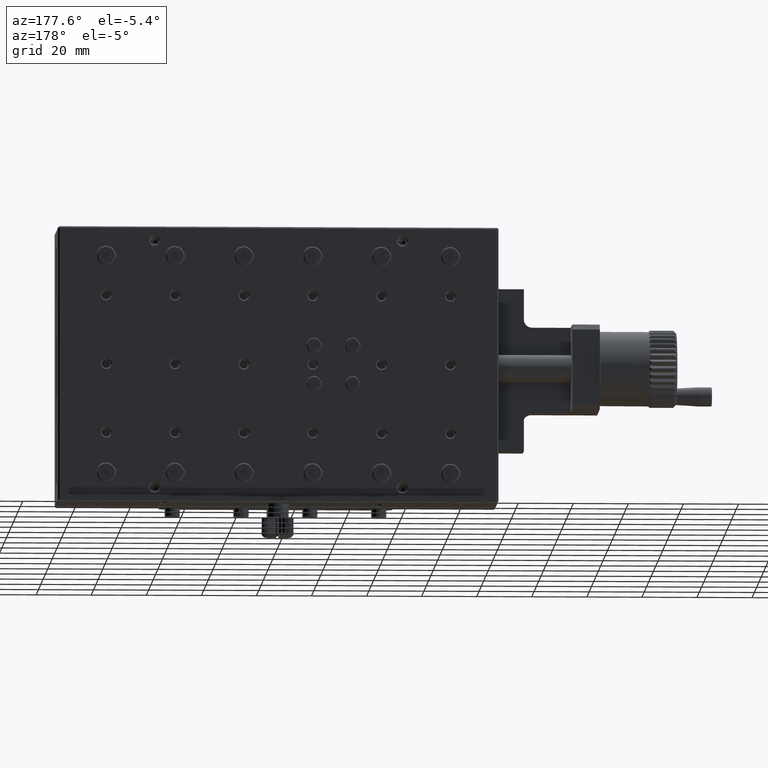
[diagram: clean part render]
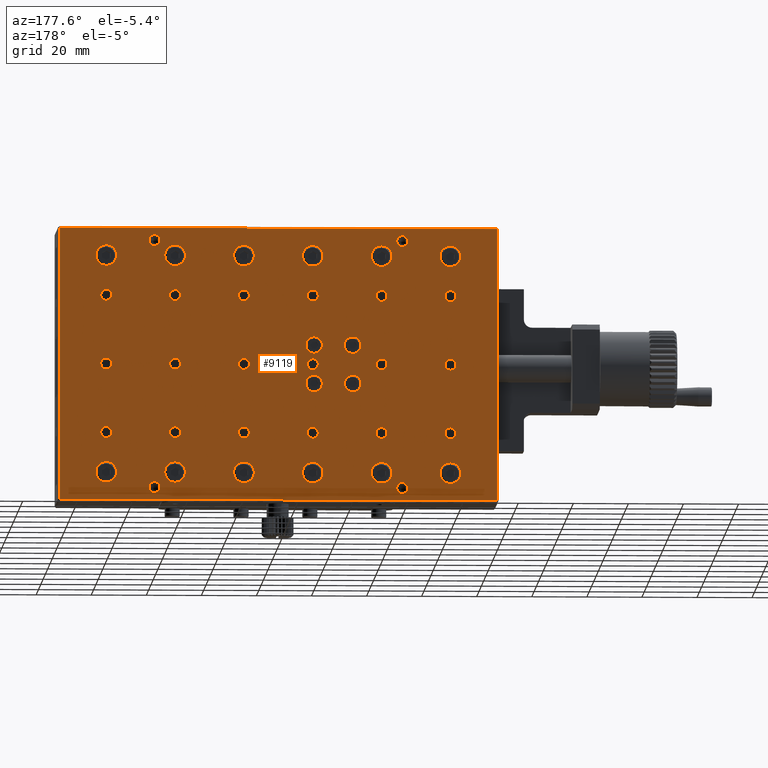
[diagram: same view with one face highlighted and labeled with its STEP entity id]
A machine part, auxiliary view. The second image highlights one B-rep face of the part: STEP entity #9119.
In plain terms, the highlighted planar face has unit normal (0, 1, 0).
Its self-contained STEP definition (entity closure, byte-faithful):
#76 = DIRECTION ( 'NONE',  ( 0.000000000000000000, 0.000000000000000000, 1.000000000000000000 ) ) ;
#99 = VERTEX_POINT ( 'NONE', #32044 ) ;
#115 = LINE ( 'NONE', #50007, #6203 ) ;
#432 = CARTESIAN_POINT ( 'NONE',  ( -117.5000000000000142, 29.99999999994861355, -23.00000000002455636 ) ) ;
#621 = VERTEX_POINT ( 'NONE', #50881 ) ;
#673 = CARTESIAN_POINT ( 'NONE',  ( -67.50000000000000000, 30.00000000006230039, 2.000000000009549694 ) ) ;
#757 = DIRECTION ( 'NONE',  ( -0.000000000000000000, -1.000000000000000000, -0.000000000000000000 ) ) ;
#810 = FACE_BOUND ( 'NONE', #44890, .T. ) ;
#1043 = CIRCLE ( 'NONE', #16268, 1.999999999975444975 ) ;
#1182 = FACE_BOUND ( 'NONE', #51714, .T. ) ;
#1289 = LINE ( 'NONE', #23658, #29241 ) ;
#1912 = FACE_BOUND ( 'NONE', #64172, .T. ) ;
#1943 = DIRECTION ( 'NONE',  ( 0.000000000000000000, -1.000000000000000000, -0.000000000000000000 ) ) ;
#2140 = DIRECTION ( 'NONE',  ( 0.000000000000000000, 0.000000000000000000, 1.000000000000000000 ) ) ;
#2168 = CARTESIAN_POINT ( 'NONE',  ( -125.0000000000000000, 29.99999999994861355, -45.00000000000000000 ) ) ;
#2211 = EDGE_LOOP ( 'NONE', ( #3749 ) ) ;
#2322 = EDGE_LOOP ( 'NONE', ( #25484 ) ) ;
#2370 = EDGE_LOOP ( 'NONE', ( #53619 ) ) ;
#2612 = DIRECTION ( 'NONE',  ( 0.000000000000000000, -1.000000000000000000, -0.000000000000000000 ) ) ;
#2700 = EDGE_CURVE ( 'NONE', #15456, #15456, #27819, .T. ) ;
#2717 = EDGE_CURVE ( 'NONE', #33426, #33426, #17229, .T. ) ;
#2848 = CARTESIAN_POINT ( 'NONE',  ( -17.50000000000000000, 30.00000000006230039, 0.000000000000000000 ) ) ;
#2982 = EDGE_CURVE ( 'NONE', #55417, #55417, #14932, .T. ) ;
#3088 = ORIENTED_EDGE ( 'NONE', *, *, #37333, .T. ) ;
#3181 = DIRECTION ( 'NONE',  ( 0.000000000000000000, 0.000000000000000000, 1.000000000000000000 ) ) ;
#3307 = EDGE_CURVE ( 'NONE', #5174, #5174, #5565, .T. ) ;
#3749 = ORIENTED_EDGE ( 'NONE', *, *, #40530, .T. ) ;
#3813 = CARTESIAN_POINT ( 'NONE',  ( -67.50000000000000000, 30.00000000000000000, 43.25000000000000000 ) ) ;
#4050 = DIRECTION ( 'NONE',  ( 0.000000000000000000, 0.000000000000000000, 1.000000000000000000 ) ) ;
#4122 = AXIS2_PLACEMENT_3D ( 'NONE', #28512, #10917, #23391 ) ;
#4210 = ORIENTED_EDGE ( 'NONE', *, *, #33007, .T. ) ;
#4358 = CARTESIAN_POINT ( 'NONE',  ( -107.0000000000000000, 30.00000000000000000, 10.00000000000000000 ) ) ;
#4368 = AXIS2_PLACEMENT_3D ( 'NONE', #61698, #54120, #33825 ) ;
#4439 = EDGE_LOOP ( 'NONE', ( #57020 ) ) ;
#4553 = DIRECTION ( 'NONE',  ( 0.000000000000000000, 0.000000000000000000, 1.000000000000000000 ) ) ;
#4733 = DIRECTION ( 'NONE',  ( 0.000000000000000000, 0.000000000000000000, 1.000000000000000000 ) ) ;
#4856 = ORIENTED_EDGE ( 'NONE', *, *, #58931, .T. ) ;
#4902 = DIRECTION ( 'NONE',  ( 0.000000000000000000, -0.000000000000000000, 1.000000000000000000 ) ) ;
#5174 = VERTEX_POINT ( 'NONE', #27553 ) ;
#5231 = CARTESIAN_POINT ( 'NONE',  ( -117.5000000000000142, 30.00000000000000000, 39.50000000000000000 ) ) ;
#5565 = CIRCLE ( 'NONE', #46597, 1.999999999936788342 ) ;
#5673 = AXIS2_PLACEMENT_3D ( 'NONE', #38829, #67060, #4733 ) ;
#6052 = CARTESIAN_POINT ( 'NONE',  ( -92.50000000000000000, 29.99999999994861355, -23.00000000002455636 ) ) ;
#6175 = VERTEX_POINT ( 'NONE', #673 ) ;
#6203 = VECTOR ( 'NONE', #4902, 1000.000000000000000 ) ;
#6233 = AXIS2_PLACEMENT_3D ( 'NONE', #57336, #1943, #13668 ) ;
#6303 = FACE_BOUND ( 'NONE', #10616, .T. ) ;
#6305 = CARTESIAN_POINT ( 'NONE',  ( -17.50000000000000000, 29.99999999994861355, -23.00000000002455636 ) ) ;
#6493 = EDGE_LOOP ( 'NONE', ( #31851 ) ) ;
#6682 = FACE_BOUND ( 'NONE', #6493, .T. ) ;
#6720 = DIRECTION ( 'NONE',  ( 0.000000000000000000, 0.000000000000000000, 1.000000000000000000 ) ) ;
#6871 = CARTESIAN_POINT ( 'NONE',  ( -17.50000000000000000, 30.00000000000000000, -35.75000000000000711 ) ) ;
#6876 = ORIENTED_EDGE ( 'NONE', *, *, #2717, .T. ) ;
#7047 = EDGE_CURVE ( 'NONE', #68235, #68235, #27588, .T. ) ;
#7065 = FACE_BOUND ( 'NONE', #38237, .T. ) ;
#7164 = DIRECTION ( 'NONE',  ( 1.000000000000000000, 0.000000000000000000, -0.000000000000000000 ) ) ;
#7786 = FACE_BOUND ( 'NONE', #52902, .T. ) ;
#8233 = VERTEX_POINT ( 'NONE', #52967 ) ;
#8384 = DIRECTION ( 'NONE',  ( 0.000000000000000000, 0.000000000000000000, 1.000000000000000000 ) ) ;
#8411 = ORIENTED_EDGE ( 'NONE', *, *, #15943, .T. ) ;
#8983 = FACE_BOUND ( 'NONE', #2370, .T. ) ;
#9119 = ADVANCED_FACE ( 'NONE', ( #25873, #35775, #8983, #25131, #46811, #69181, #30294, #64033, #13761, #18787, #29438, #7786, #56926, #35297, #17682, #35647, #23194, #41174, #46682, #40799, #58022, #24665, #1912, #63547, #7065, #47046, #6682, #57657, #17319, #40053, #34197, #24293, #29062, #1182, #6303, #51065, #56551, #13254, #810 ), #28684, .T. ) ;
#9828 = DIRECTION ( 'NONE',  ( 0.000000000000000000, 0.000000000000000000, 1.000000000000000000 ) ) ;
#9891 = CARTESIAN_POINT ( 'NONE',  ( -125.0000000000000000, 29.99999999994861355, 45.00000000000000000 ) ) ;
#10056 = CARTESIAN_POINT ( 'NONE',  ( -92.50000000000000000, 30.00000000000000000, 39.50000000000000000 ) ) ;
#10076 = AXIS2_PLACEMENT_3D ( 'NONE', #66836, #21353, #60605 ) ;
#10397 = AXIS2_PLACEMENT_3D ( 'NONE', #61952, #34073, #50217 ) ;
#10616 = EDGE_LOOP ( 'NONE', ( #6876 ) ) ;
#10917 = DIRECTION ( 'NONE',  ( -0.000000000000000000, -1.000000000000000000, -0.000000000000000000 ) ) ;
#10930 = CARTESIAN_POINT ( 'NONE',  ( -67.50000000000000000, 30.00000000000000000, 39.50000000000000000 ) ) ;
#11065 = CIRCLE ( 'NONE', #19299, 2.000000000009549694 ) ;
#11270 = VERTEX_POINT ( 'NONE', #33668 ) ;
#11279 = ORIENTED_EDGE ( 'NONE', *, *, #51690, .T. ) ;
#11559 = ORIENTED_EDGE ( 'NONE', *, *, #37849, .T. ) ;
#11561 = DIRECTION ( 'NONE',  ( 0.000000000000000000, -1.000000000000000000, -0.000000000000000000 ) ) ;
#11809 = EDGE_CURVE ( 'NONE', #71301, #42422, #22078, .T. ) ;
#12047 = EDGE_LOOP ( 'NONE', ( #36766 ) ) ;
#12411 = CARTESIAN_POINT ( 'NONE',  ( -92.50000000000000000, 29.99999999994861355, 2.000000000009549694 ) ) ;
#12540 = EDGE_CURVE ( 'NONE', #621, #621, #48926, .T. ) ;
#12644 = EDGE_CURVE ( 'NONE', #11270, #11270, #44250, .T. ) ;
#12742 = CARTESIAN_POINT ( 'NONE',  ( -117.5000000000000142, 29.99999999994861355, 25.00000000000000000 ) ) ;
#12785 = VERTEX_POINT ( 'NONE', #12411 ) ;
#12890 = AXIS2_PLACEMENT_3D ( 'NONE', #63182, #45583, #12914 ) ;
#12914 = DIRECTION ( 'NONE',  ( 0.000000000000000000, -0.000000000000000000, 1.000000000000000000 ) ) ;
#13088 = VERTEX_POINT ( 'NONE', #6871 ) ;
#13254 = FACE_BOUND ( 'NONE', #44359, .T. ) ;
#13498 = VERTEX_POINT ( 'NONE', #20097 ) ;
#13668 = DIRECTION ( 'NONE',  ( 0.000000000000000000, 0.000000000000000000, 1.000000000000000000 ) ) ;
#13761 = FACE_BOUND ( 'NONE', #49786, .T. ) ;
#13786 = VECTOR ( 'NONE', #41366, 1000.000000000000000 ) ;
#14053 = CARTESIAN_POINT ( 'NONE',  ( -42.50000000000000000, 30.00000000006230039, 0.000000000000000000 ) ) ;
#14069 = CARTESIAN_POINT ( 'NONE',  ( -92.50000000000000000, 29.99999999994861355, -25.00000000000000000 ) ) ;
#14073 = EDGE_CURVE ( 'NONE', #27805, #27805, #36177, .T. ) ;
#14357 = CARTESIAN_POINT ( 'NONE',  ( -159.5000000000000000, 30.00000000000000000, -49.50000000000000000 ) ) ;
#14487 = EDGE_LOOP ( 'NONE', ( #45714 ) ) ;
#14761 = DIRECTION ( 'NONE',  ( 0.000000000000000000, 0.000000000000000000, 1.000000000000000000 ) ) ;
#14787 = DIRECTION ( 'NONE',  ( -0.000000000000000000, -1.000000000000000000, -0.000000000000000000 ) ) ;
#14932 = CIRCLE ( 'NONE', #31389, 1.999999999975444975 ) ;
#15140 = AXIS2_PLACEMENT_3D ( 'NONE', #33780, #44436, #34134 ) ;
#15154 = CARTESIAN_POINT ( 'NONE',  ( -92.50000000000000000, 29.99999999994861355, 25.00000000000000000 ) ) ;
#15456 = VERTEX_POINT ( 'NONE', #22404 ) ;
#15943 = EDGE_CURVE ( 'NONE', #28878, #28878, #27997, .T. ) ;
#16167 = EDGE_CURVE ( 'NONE', #13088, #13088, #69023, .T. ) ;
#16268 = AXIS2_PLACEMENT_3D ( 'NONE', #38548, #55767, #60925 ) ;
#16278 = DIRECTION ( 'NONE',  ( -0.000000000000000000, -1.000000000000000000, -0.000000000000000000 ) ) ;
#16594 = VERTEX_POINT ( 'NONE', #50357 ) ;
#16607 = CARTESIAN_POINT ( 'NONE',  ( -107.0000000000000000, 30.00000000000000000, 7.000000000000000000 ) ) ;
#16724 = VERTEX_POINT ( 'NONE', #67361 ) ;
#17130 = EDGE_LOOP ( 'NONE', ( #8411 ) ) ;
#17174 = CIRCLE ( 'NONE', #58203, 3.749999999999996447 ) ;
#17229 = CIRCLE ( 'NONE', #37147, 1.999999999936788342 ) ;
#17250 = AXIS2_PLACEMENT_3D ( 'NONE', #23631, #46005, #57373 ) ;
#17319 = FACE_BOUND ( 'NONE', #17130, .T. ) ;
#17671 = EDGE_CURVE ( 'NONE', #18228, #18228, #57422, .T. ) ;
#17682 = FACE_BOUND ( 'NONE', #39842, .T. ) ;
#18121 = AXIS2_PLACEMENT_3D ( 'NONE', #5231, #45575, #22804 ) ;
#18228 = VERTEX_POINT ( 'NONE', #52343 ) ;
#18787 = FACE_BOUND ( 'NONE', #52570, .T. ) ;
#19293 = AXIS2_PLACEMENT_3D ( 'NONE', #30794, #35564, #42172 ) ;
#19299 = AXIS2_PLACEMENT_3D ( 'NONE', #55616, #61139, #27378 ) ;
#19711 = CIRCLE ( 'NONE', #5673, 1.999999999975444975 ) ;
#19736 = VERTEX_POINT ( 'NONE', #41748 ) ;
#19830 = ORIENTED_EDGE ( 'NONE', *, *, #45467, .T. ) ;
#20097 = CARTESIAN_POINT ( 'NONE',  ( -42.50000000000000000, 29.99999999994861355, 26.99999999992996891 ) ) ;
#20287 = DIRECTION ( 'NONE',  ( 0.000000000000000000, -1.000000000000000000, -0.000000000000000000 ) ) ;
#20378 = CIRCLE ( 'NONE', #18121, 3.749999999999996447 ) ;
#20645 = DIRECTION ( 'NONE',  ( 0.000000000000000000, -1.000000000000000000, -0.000000000000000000 ) ) ;
#20763 = VERTEX_POINT ( 'NONE', #37270 ) ;
#20869 = VERTEX_POINT ( 'NONE', #31521 ) ;
#21353 = DIRECTION ( 'NONE',  ( -0.000000000000000000, -1.000000000000000000, -0.000000000000000000 ) ) ;
#21447 = AXIS2_PLACEMENT_3D ( 'NONE', #16607, #33500, #4553 ) ;
#21476 = EDGE_CURVE ( 'NONE', #31048, #31048, #20378, .T. ) ;
#21559 = DIRECTION ( 'NONE',  ( -0.000000000000000000, -1.000000000000000000, -0.000000000000000000 ) ) ;
#21804 = ORIENTED_EDGE ( 'NONE', *, *, #16167, .T. ) ;
#22078 = LINE ( 'NONE', #44478, #46513 ) ;
#22190 = CIRCLE ( 'NONE', #15140, 1.999999999929967576 ) ;
#22393 = DIRECTION ( 'NONE',  ( 0.000000000000000000, -1.000000000000000000, -0.000000000000000000 ) ) ;
#22404 = CARTESIAN_POINT ( 'NONE',  ( -67.50000000000000000, 30.00000000000000000, -35.75000000000000711 ) ) ;
#22479 = CARTESIAN_POINT ( 'NONE',  ( -0.4999999999999950040, 30.00000000000000000, -49.50000000000000711 ) ) ;
#22481 = AXIS2_PLACEMENT_3D ( 'NONE', #53277, #47075, #58066 ) ;
#22496 = CARTESIAN_POINT ( 'NONE',  ( -17.50000000000000000, 29.99999999994861355, 25.00000000000000000 ) ) ;
#22804 = DIRECTION ( 'NONE',  ( 0.000000000000000000, 0.000000000000000000, 1.000000000000000000 ) ) ;
#22922 = DIRECTION ( 'NONE',  ( 0.000000000000000000, 0.000000000000000000, 1.000000000000000000 ) ) ;
#22946 = EDGE_CURVE ( 'NONE', #20763, #20763, #31136, .T. ) ;
#23136 = DIRECTION ( 'NONE',  ( 0.000000000000000000, 0.000000000000000000, 1.000000000000000000 ) ) ;
#23194 = FACE_BOUND ( 'NONE', #69128, .T. ) ;
#23336 = AXIS2_PLACEMENT_3D ( 'NONE', #15154, #20287, #59544 ) ;
#23391 = DIRECTION ( 'NONE',  ( 0.000000000000000000, 0.000000000000000000, 1.000000000000000000 ) ) ;
#23631 = CARTESIAN_POINT ( 'NONE',  ( -42.50000000000000000, 30.00000000000000000, 39.50000000000000000 ) ) ;
#23658 = CARTESIAN_POINT ( 'NONE',  ( -160.0000000000000000, 30.00000000000000000, 49.50000000000000000 ) ) ;
#24160 = CARTESIAN_POINT ( 'NONE',  ( -142.5000000000000284, 30.00000000000000000, -35.75000000000000711 ) ) ;
#24293 = FACE_BOUND ( 'NONE', #58204, .T. ) ;
#24665 = FACE_BOUND ( 'NONE', #4439, .T. ) ;
#24703 = EDGE_CURVE ( 'NONE', #32865, #32865, #34307, .T. ) ;
#25092 = CARTESIAN_POINT ( 'NONE',  ( -92.50000000000000000, 30.00000000000000000, -35.75000000000000711 ) ) ;
#25131 = FACE_BOUND ( 'NONE', #61310, .T. ) ;
#25454 = CARTESIAN_POINT ( 'NONE',  ( -142.5000000000000284, 30.00000000000000000, 39.50000000000000000 ) ) ;
#25470 = VERTEX_POINT ( 'NONE', #42341 ) ;
#25484 = ORIENTED_EDGE ( 'NONE', *, *, #25759, .T. ) ;
#25557 = ORIENTED_EDGE ( 'NONE', *, *, #62337, .T. ) ;
#25759 = EDGE_CURVE ( 'NONE', #60367, #60367, #48678, .T. ) ;
#25873 = FACE_OUTER_BOUND ( 'NONE', #68075, .T. ) ;
#25897 = DIRECTION ( 'NONE',  ( 0.000000000000000000, -1.000000000000000000, -0.000000000000000000 ) ) ;
#26294 = ORIENTED_EDGE ( 'NONE', *, *, #53631, .T. ) ;
#26347 = EDGE_LOOP ( 'NONE', ( #4856 ) ) ;
#27378 = DIRECTION ( 'NONE',  ( 0.000000000000000000, 0.000000000000000000, 1.000000000000000000 ) ) ;
#27516 = CIRCLE ( 'NONE', #19293, 2.000000000009549694 ) ;
#27553 = CARTESIAN_POINT ( 'NONE',  ( -125.0000000000000000, 29.99999999994861355, -43.00000000006320988 ) ) ;
#27588 = CIRCLE ( 'NONE', #52185, 3.749999999999996447 ) ;
#27805 = VERTEX_POINT ( 'NONE', #41327 ) ;
#27819 = CIRCLE ( 'NONE', #4368, 3.749999999999996447 ) ;
#27847 = DIRECTION ( 'NONE',  ( 0.000000000000000000, -1.000000000000000000, -0.000000000000000000 ) ) ;
#27997 = CIRCLE ( 'NONE', #23336, 1.999999999929967576 ) ;
#28512 = CARTESIAN_POINT ( 'NONE',  ( -142.5000000000000284, 30.00000000000000000, -39.50000000000000000 ) ) ;
#28599 = CIRCLE ( 'NONE', #61443, 2.000000000009549694 ) ;
#28684 = PLANE ( 'NONE',  #12890 ) ;
#28763 = CIRCLE ( 'NONE', #38151, 2.000000000009549694 ) ;
#28878 = VERTEX_POINT ( 'NONE', #34742 ) ;
#29062 = FACE_BOUND ( 'NONE', #71171, .T. ) ;
#29241 = VECTOR ( 'NONE', #7164, 1000.000000000000000 ) ;
#29438 = FACE_BOUND ( 'NONE', #38871, .T. ) ;
#29666 = DIRECTION ( 'NONE',  ( -0.000000000000000000, -1.000000000000000000, -0.000000000000000000 ) ) ;
#29861 = DIRECTION ( 'NONE',  ( 0.000000000000000000, 0.000000000000000000, 1.000000000000000000 ) ) ;
#30294 = FACE_BOUND ( 'NONE', #67587, .T. ) ;
#30384 = LINE ( 'NONE', #58949, #13786 ) ;
#30516 = EDGE_LOOP ( 'NONE', ( #11279 ) ) ;
#30790 = VERTEX_POINT ( 'NONE', #61723 ) ;
#30794 = CARTESIAN_POINT ( 'NONE',  ( -117.5000000000000142, 30.00000000006230039, 0.000000000000000000 ) ) ;
#30926 = DIRECTION ( 'NONE',  ( 0.000000000000000000, 0.000000000000000000, 1.000000000000000000 ) ) ;
#31048 = VERTEX_POINT ( 'NONE', #58569 ) ;
#31136 = CIRCLE ( 'NONE', #35778, 3.749999999999996447 ) ;
#31161 = CARTESIAN_POINT ( 'NONE',  ( -67.50000000000000000, 29.99999999994861355, 26.99999999992996891 ) ) ;
#31333 = VERTEX_POINT ( 'NONE', #3813 ) ;
#31389 = AXIS2_PLACEMENT_3D ( 'NONE', #42949, #2612, #63891 ) ;
#31500 = AXIS2_PLACEMENT_3D ( 'NONE', #12742, #53796, #3181 ) ;
#31521 = CARTESIAN_POINT ( 'NONE',  ( -93.00000000000000000, 30.00000000000000000, 10.00000000000000000 ) ) ;
#31604 = ORIENTED_EDGE ( 'NONE', *, *, #52655, .T. ) ;
#31673 = AXIS2_PLACEMENT_3D ( 'NONE', #52257, #11561, #22922 ) ;
#31729 = DIRECTION ( 'NONE',  ( 0.000000000000000000, 0.000000000000000000, 1.000000000000000000 ) ) ;
#31851 = ORIENTED_EDGE ( 'NONE', *, *, #47583, .T. ) ;
#31876 = AXIS2_PLACEMENT_3D ( 'NONE', #39658, #757, #23136 ) ;
#32044 = CARTESIAN_POINT ( 'NONE',  ( -17.50000000000000000, 29.99999999994861355, 26.99999999992996891 ) ) ;
#32235 = VERTEX_POINT ( 'NONE', #4358 ) ;
#32685 = AXIS2_PLACEMENT_3D ( 'NONE', #49546, #33406, #40247 ) ;
#32865 = VERTEX_POINT ( 'NONE', #54869 ) ;
#32988 = CIRCLE ( 'NONE', #56384, 3.000000000000000000 ) ;
#33007 = EDGE_CURVE ( 'NONE', #39795, #39795, #44899, .T. ) ;
#33058 = DIRECTION ( 'NONE',  ( 0.000000000000000000, 0.000000000000000000, 1.000000000000000000 ) ) ;
#33406 = DIRECTION ( 'NONE',  ( -0.000000000000000000, -1.000000000000000000, -0.000000000000000000 ) ) ;
#33426 = VERTEX_POINT ( 'NONE', #37841 ) ;
#33500 = DIRECTION ( 'NONE',  ( -0.000000000000000000, -1.000000000000000000, -0.000000000000000000 ) ) ;
#33668 = CARTESIAN_POINT ( 'NONE',  ( -142.5000000000000284, 30.00000000000000000, 43.25000000000000000 ) ) ;
#33766 = DIRECTION ( 'NONE',  ( 0.000000000000000000, 0.000000000000000000, 1.000000000000000000 ) ) ;
#33780 = CARTESIAN_POINT ( 'NONE',  ( -142.5000000000000284, 29.99999999994861355, 25.00000000000000000 ) ) ;
#33825 = DIRECTION ( 'NONE',  ( 0.000000000000000000, 0.000000000000000000, 1.000000000000000000 ) ) ;
#33850 = VERTEX_POINT ( 'NONE', #47302 ) ;
#34073 = DIRECTION ( 'NONE',  ( 0.000000000000000000, -1.000000000000000000, -0.000000000000000000 ) ) ;
#34134 = DIRECTION ( 'NONE',  ( 0.000000000000000000, 0.000000000000000000, 1.000000000000000000 ) ) ;
#34197 = FACE_BOUND ( 'NONE', #65092, .T. ) ;
#34307 = CIRCLE ( 'NONE', #58917, 2.000000000025467628 ) ;
#34550 = VERTEX_POINT ( 'NONE', #432 ) ;
#34742 = CARTESIAN_POINT ( 'NONE',  ( -92.50000000000000000, 29.99999999994861355, 26.99999999992996891 ) ) ;
#34868 = CARTESIAN_POINT ( 'NONE',  ( -42.50000000000000000, 30.00000000000000000, -35.75000000000000711 ) ) ;
#35297 = FACE_BOUND ( 'NONE', #72543, .T. ) ;
#35330 = DIRECTION ( 'NONE',  ( 0.000000000000000000, -1.000000000000000000, -0.000000000000000000 ) ) ;
#35564 = DIRECTION ( 'NONE',  ( 0.000000000000000000, -1.000000000000000000, -0.000000000000000000 ) ) ;
#35647 = FACE_BOUND ( 'NONE', #2211, .T. ) ;
#35736 = CIRCLE ( 'NONE', #4122, 3.749999999999996447 ) ;
#35775 = FACE_BOUND ( 'NONE', #65101, .T. ) ;
#35778 = AXIS2_PLACEMENT_3D ( 'NONE', #64149, #29666, #8384 ) ;
#36094 = DIRECTION ( 'NONE',  ( 0.000000000000000000, -1.000000000000000000, -0.000000000000000000 ) ) ;
#36122 = ORIENTED_EDGE ( 'NONE', *, *, #38804, .T. ) ;
#36177 = CIRCLE ( 'NONE', #10397, 1.999999999975444975 ) ;
#36210 = EDGE_CURVE ( 'NONE', #43069, #43069, #41710, .T. ) ;
#36267 = DIRECTION ( 'NONE',  ( 0.000000000000000000, 0.000000000000000000, 1.000000000000000000 ) ) ;
#36766 = ORIENTED_EDGE ( 'NONE', *, *, #12540, .T. ) ;
#36807 = CARTESIAN_POINT ( 'NONE',  ( -92.50000000000000000, 30.00000000000000000, 43.25000000000000000 ) ) ;
#37147 = AXIS2_PLACEMENT_3D ( 'NONE', #64767, #25897, #76 ) ;
#37270 = CARTESIAN_POINT ( 'NONE',  ( -117.5000000000000142, 30.00000000000000000, -35.75000000000000711 ) ) ;
#37333 = EDGE_CURVE ( 'NONE', #25470, #25470, #39445, .T. ) ;
#37377 = AXIS2_PLACEMENT_3D ( 'NONE', #57017, #21559, #9828 ) ;
#37841 = CARTESIAN_POINT ( 'NONE',  ( -35.00000000000000000, 29.99999999994861355, -43.00000000006320988 ) ) ;
#37849 = EDGE_CURVE ( 'NONE', #31333, #31333, #64138, .T. ) ;
#38151 = AXIS2_PLACEMENT_3D ( 'NONE', #2848, #60685, #2140 ) ;
#38208 = CARTESIAN_POINT ( 'NONE',  ( -142.5000000000000284, 29.99999999994861355, -23.00000000002455636 ) ) ;
#38237 = EDGE_LOOP ( 'NONE', ( #3088 ) ) ;
#38548 = CARTESIAN_POINT ( 'NONE',  ( -17.50000000000000000, 29.99999999994861355, -25.00000000000000000 ) ) ;
#38804 = EDGE_CURVE ( 'NONE', #69485, #69485, #17174, .T. ) ;
#38829 = CARTESIAN_POINT ( 'NONE',  ( -67.50000000000000000, 29.99999999994861355, -25.00000000000000000 ) ) ;
#38871 = EDGE_LOOP ( 'NONE', ( #72549 ) ) ;
#39140 = EDGE_CURVE ( 'NONE', #8233, #8233, #57092, .T. ) ;
#39445 = CIRCLE ( 'NONE', #48853, 2.000000000009549694 ) ;
#39508 = AXIS2_PLACEMENT_3D ( 'NONE', #10930, #54991, #50201 ) ;
#39512 = EDGE_LOOP ( 'NONE', ( #36122 ) ) ;
#39658 = CARTESIAN_POINT ( 'NONE',  ( -107.0000000000000000, 30.00000000000000000, -7.000000000000000000 ) ) ;
#39748 = CARTESIAN_POINT ( 'NONE',  ( -159.5000000000000000, 30.00000000000000000, 49.50000000000001421 ) ) ;
#39795 = VERTEX_POINT ( 'NONE', #57395 ) ;
#39842 = EDGE_LOOP ( 'NONE', ( #50759 ) ) ;
#39922 = EDGE_LOOP ( 'NONE', ( #45711 ) ) ;
#39962 = ORIENTED_EDGE ( 'NONE', *, *, #71062, .T. ) ;
#39977 = ORIENTED_EDGE ( 'NONE', *, *, #67205, .T. ) ;
#40053 = FACE_BOUND ( 'NONE', #69233, .T. ) ;
#40055 = VERTEX_POINT ( 'NONE', #6305 ) ;
#40072 = CIRCLE ( 'NONE', #31876, 3.000000000000000000 ) ;
#40139 = EDGE_LOOP ( 'NONE', ( #50233 ) ) ;
#40212 = EDGE_LOOP ( 'NONE', ( #43495 ) ) ;
#40247 = DIRECTION ( 'NONE',  ( 0.000000000000000000, 0.000000000000000000, 1.000000000000000000 ) ) ;
#40407 = ORIENTED_EDGE ( 'NONE', *, *, #2700, .T. ) ;
#40530 = EDGE_CURVE ( 'NONE', #16594, #16594, #19711, .T. ) ;
#40799 = FACE_BOUND ( 'NONE', #2322, .T. ) ;
#41002 = ORIENTED_EDGE ( 'NONE', *, *, #24703, .T. ) ;
#41174 = FACE_BOUND ( 'NONE', #53814, .T. ) ;
#41327 = CARTESIAN_POINT ( 'NONE',  ( -42.50000000000000000, 29.99999999994861355, -23.00000000002455636 ) ) ;
#41366 = DIRECTION ( 'NONE',  ( -1.000000000000000000, -0.000000000000000000, 0.000000000000000000 ) ) ;
#41638 = DIRECTION ( 'NONE',  ( -0.000000000000000000, -1.000000000000000000, -0.000000000000000000 ) ) ;
#41710 = CIRCLE ( 'NONE', #10076, 3.749999999999996447 ) ;
#41748 = CARTESIAN_POINT ( 'NONE',  ( -117.5000000000000142, 30.00000000006230039, 2.000000000009549694 ) ) ;
#42087 = EDGE_LOOP ( 'NONE', ( #68045 ) ) ;
#42114 = VERTEX_POINT ( 'NONE', #24160 ) ;
#42172 = DIRECTION ( 'NONE',  ( 0.000000000000000000, 0.000000000000000000, 1.000000000000000000 ) ) ;
#42341 = CARTESIAN_POINT ( 'NONE',  ( -42.50000000000000000, 30.00000000006230039, 2.000000000009549694 ) ) ;
#42422 = VERTEX_POINT ( 'NONE', #22479 ) ;
#42886 = VERTEX_POINT ( 'NONE', #54604 ) ;
#42949 = CARTESIAN_POINT ( 'NONE',  ( -142.5000000000000284, 29.99999999994861355, -25.00000000000000000 ) ) ;
#43069 = VERTEX_POINT ( 'NONE', #25092 ) ;
#43283 = DIRECTION ( 'NONE',  ( 0.000000000000000000, 0.000000000000000000, 1.000000000000000000 ) ) ;
#43487 = EDGE_CURVE ( 'NONE', #99, #99, #66885, .T. ) ;
#43495 = ORIENTED_EDGE ( 'NONE', *, *, #70723, .T. ) ;
#43698 = DIRECTION ( 'NONE',  ( -0.000000000000000000, -1.000000000000000000, -0.000000000000000000 ) ) ;
#44035 = ORIENTED_EDGE ( 'NONE', *, *, #12644, .T. ) ;
#44250 = CIRCLE ( 'NONE', #53618, 3.749999999999996447 ) ;
#44359 = EDGE_LOOP ( 'NONE', ( #31604 ) ) ;
#44436 = DIRECTION ( 'NONE',  ( 0.000000000000000000, -1.000000000000000000, -0.000000000000000000 ) ) ;
#44478 = CARTESIAN_POINT ( 'NONE',  ( -0.5000000000000004441, 30.00000000000000000, -50.00000000000000000 ) ) ;
#44719 = EDGE_LOOP ( 'NONE', ( #40407 ) ) ;
#44890 = EDGE_LOOP ( 'NONE', ( #62971 ) ) ;
#44899 = CIRCLE ( 'NONE', #63660, 3.749999999999996447 ) ;
#45467 = EDGE_CURVE ( 'NONE', #34550, #34550, #49350, .T. ) ;
#45575 = DIRECTION ( 'NONE',  ( -0.000000000000000000, -1.000000000000000000, -0.000000000000000000 ) ) ;
#45583 = DIRECTION ( 'NONE',  ( 0.000000000000000000, 1.000000000000000000, 0.000000000000000000 ) ) ;
#45711 = ORIENTED_EDGE ( 'NONE', *, *, #53727, .T. ) ;
#45714 = ORIENTED_EDGE ( 'NONE', *, *, #21476, .T. ) ;
#45845 = AXIS2_PLACEMENT_3D ( 'NONE', #67811, #27847, #61948 ) ;
#46005 = DIRECTION ( 'NONE',  ( -0.000000000000000000, -1.000000000000000000, -0.000000000000000000 ) ) ;
#46513 = VECTOR ( 'NONE', #61325, 1000.000000000000000 ) ;
#46572 = EDGE_CURVE ( 'NONE', #33850, #33850, #50208, .T. ) ;
#46575 = EDGE_CURVE ( 'NONE', #40055, #40055, #1043, .T. ) ;
#46597 = AXIS2_PLACEMENT_3D ( 'NONE', #2168, #70022, #36267 ) ;
#46682 = FACE_BOUND ( 'NONE', #42087, .T. ) ;
#46811 = FACE_BOUND ( 'NONE', #14487, .T. ) ;
#47046 = FACE_BOUND ( 'NONE', #26347, .T. ) ;
#47075 = DIRECTION ( 'NONE',  ( 0.000000000000000000, -1.000000000000000000, -0.000000000000000000 ) ) ;
#47302 = CARTESIAN_POINT ( 'NONE',  ( -35.00000000000000000, 29.99999999994861355, 47.00000000002546585 ) ) ;
#47555 = EDGE_LOOP ( 'NONE', ( #19830 ) ) ;
#47583 = EDGE_CURVE ( 'NONE', #30790, #30790, #22190, .T. ) ;
#48394 = VERTEX_POINT ( 'NONE', #31161 ) ;
#48678 = CIRCLE ( 'NONE', #62701, 1.999999999975444975 ) ;
#48853 = AXIS2_PLACEMENT_3D ( 'NONE', #14053, #20645, #30926 ) ;
#48926 = CIRCLE ( 'NONE', #17250, 3.749999999999996447 ) ;
#49350 = CIRCLE ( 'NONE', #45845, 1.999999999975444975 ) ;
#49351 = ORIENTED_EDGE ( 'NONE', *, *, #46575, .T. ) ;
#49523 = ORIENTED_EDGE ( 'NONE', *, *, #43487, .T. ) ;
#49546 = CARTESIAN_POINT ( 'NONE',  ( -35.00000000000000000, 29.99999999994861355, 45.00000000000000000 ) ) ;
#49786 = EDGE_LOOP ( 'NONE', ( #4210 ) ) ;
#50007 = CARTESIAN_POINT ( 'NONE',  ( -159.5000000000000000, 30.00000000000000000, -50.00000000000000000 ) ) ;
#50201 = DIRECTION ( 'NONE',  ( 0.000000000000000000, 0.000000000000000000, 1.000000000000000000 ) ) ;
#50208 = CIRCLE ( 'NONE', #32685, 2.000000000025467628 ) ;
#50217 = DIRECTION ( 'NONE',  ( 0.000000000000000000, 0.000000000000000000, 1.000000000000000000 ) ) ;
#50233 = ORIENTED_EDGE ( 'NONE', *, *, #57367, .T. ) ;
#50357 = CARTESIAN_POINT ( 'NONE',  ( -67.50000000000000000, 29.99999999994861355, -23.00000000002455636 ) ) ;
#50759 = ORIENTED_EDGE ( 'NONE', *, *, #60558, .T. ) ;
#50881 = CARTESIAN_POINT ( 'NONE',  ( -42.50000000000000000, 30.00000000000000000, 43.25000000000000000 ) ) ;
#51065 = FACE_BOUND ( 'NONE', #30516, .T. ) ;
#51690 = EDGE_CURVE ( 'NONE', #20869, #20869, #32988, .T. ) ;
#51714 = EDGE_LOOP ( 'NONE', ( #61542 ) ) ;
#52136 = ORIENTED_EDGE ( 'NONE', *, *, #55517, .T. ) ;
#52185 = AXIS2_PLACEMENT_3D ( 'NONE', #67501, #43698, #33766 ) ;
#52257 = CARTESIAN_POINT ( 'NONE',  ( -142.5000000000000284, 30.00000000006230039, 0.000000000000000000 ) ) ;
#52338 = EDGE_CURVE ( 'NONE', #48394, #48394, #67022, .T. ) ;
#52343 = CARTESIAN_POINT ( 'NONE',  ( -142.5000000000000284, 30.00000000006230039, 2.000000000009549694 ) ) ;
#52570 = EDGE_LOOP ( 'NONE', ( #25557 ) ) ;
#52655 = EDGE_CURVE ( 'NONE', #42886, #42886, #40072, .T. ) ;
#52902 = EDGE_LOOP ( 'NONE', ( #64363 ) ) ;
#52967 = CARTESIAN_POINT ( 'NONE',  ( -93.00000000000000000, 30.00000000000000000, -4.000000000000000000 ) ) ;
#53066 = CIRCLE ( 'NONE', #21447, 3.000000000000000000 ) ;
#53208 = DIRECTION ( 'NONE',  ( -0.000000000000000000, -1.000000000000000000, -0.000000000000000000 ) ) ;
#53277 = CARTESIAN_POINT ( 'NONE',  ( -67.50000000000000000, 29.99999999994861355, 25.00000000000000000 ) ) ;
#53618 = AXIS2_PLACEMENT_3D ( 'NONE', #25454, #14787, #59545 ) ;
#53619 = ORIENTED_EDGE ( 'NONE', *, *, #7047, .T. ) ;
#53631 = EDGE_CURVE ( 'NONE', #53973, #59078, #115, .T. ) ;
#53727 = EDGE_CURVE ( 'NONE', #32235, #32235, #53066, .T. ) ;
#53796 = DIRECTION ( 'NONE',  ( 0.000000000000000000, -1.000000000000000000, -0.000000000000000000 ) ) ;
#53814 = EDGE_LOOP ( 'NONE', ( #49351 ) ) ;
#53973 = VERTEX_POINT ( 'NONE', #14357 ) ;
#54120 = DIRECTION ( 'NONE',  ( -0.000000000000000000, -1.000000000000000000, -0.000000000000000000 ) ) ;
#54422 = CARTESIAN_POINT ( 'NONE',  ( -0.4999999999999900080, 30.00000000000000000, 49.50000000000000000 ) ) ;
#54604 = CARTESIAN_POINT ( 'NONE',  ( -107.0000000000000000, 30.00000000000000000, -4.000000000000000000 ) ) ;
#54869 = CARTESIAN_POINT ( 'NONE',  ( -125.0000000000000000, 29.99999999994861355, 47.00000000002546585 ) ) ;
#54991 = DIRECTION ( 'NONE',  ( -0.000000000000000000, -1.000000000000000000, -0.000000000000000000 ) ) ;
#55100 = CARTESIAN_POINT ( 'NONE',  ( -93.00000000000000000, 30.00000000000000000, -7.000000000000000000 ) ) ;
#55407 = CARTESIAN_POINT ( 'NONE',  ( -67.50000000000000000, 30.00000000006230039, 0.000000000000000000 ) ) ;
#55417 = VERTEX_POINT ( 'NONE', #38208 ) ;
#55517 = EDGE_CURVE ( 'NONE', #12785, #12785, #11065, .T. ) ;
#55616 = CARTESIAN_POINT ( 'NONE',  ( -92.50000000000000000, 29.99999999994861355, 0.000000000000000000 ) ) ;
#55767 = DIRECTION ( 'NONE',  ( 0.000000000000000000, -1.000000000000000000, -0.000000000000000000 ) ) ;
#56384 = AXIS2_PLACEMENT_3D ( 'NONE', #64572, #70791, #43283 ) ;
#56551 = FACE_BOUND ( 'NONE', #39922, .T. ) ;
#56926 = FACE_BOUND ( 'NONE', #44719, .T. ) ;
#57017 = CARTESIAN_POINT ( 'NONE',  ( -17.50000000000000000, 30.00000000000000000, -39.50000000000000000 ) ) ;
#57020 = ORIENTED_EDGE ( 'NONE', *, *, #2982, .T. ) ;
#57092 = CIRCLE ( 'NONE', #65275, 3.000000000000000000 ) ;
#57336 = CARTESIAN_POINT ( 'NONE',  ( -42.50000000000000000, 29.99999999994861355, 25.00000000000000000 ) ) ;
#57367 = EDGE_CURVE ( 'NONE', #6175, #6175, #28599, .T. ) ;
#57373 = DIRECTION ( 'NONE',  ( 0.000000000000000000, 0.000000000000000000, 1.000000000000000000 ) ) ;
#57395 = CARTESIAN_POINT ( 'NONE',  ( -17.50000000000000000, 30.00000000000000000, 43.25000000000000000 ) ) ;
#57422 = CIRCLE ( 'NONE', #31673, 2.000000000009549694 ) ;
#57657 = FACE_BOUND ( 'NONE', #40212, .T. ) ;
#57888 = CARTESIAN_POINT ( 'NONE',  ( -17.50000000000000000, 30.00000000006230039, 2.000000000009549694 ) ) ;
#58022 = FACE_BOUND ( 'NONE', #47555, .T. ) ;
#58066 = DIRECTION ( 'NONE',  ( 0.000000000000000000, 0.000000000000000000, 1.000000000000000000 ) ) ;
#58203 = AXIS2_PLACEMENT_3D ( 'NONE', #10056, #16278, #31729 ) ;
#58204 = EDGE_LOOP ( 'NONE', ( #72292 ) ) ;
#58569 = CARTESIAN_POINT ( 'NONE',  ( -117.5000000000000142, 30.00000000000000000, 43.25000000000000000 ) ) ;
#58855 = CARTESIAN_POINT ( 'NONE',  ( -17.50000000000000000, 30.00000000000000000, 39.50000000000000000 ) ) ;
#58913 = ORIENTED_EDGE ( 'NONE', *, *, #11809, .T. ) ;
#58917 = AXIS2_PLACEMENT_3D ( 'NONE', #9891, #53208, #4050 ) ;
#58931 = EDGE_CURVE ( 'NONE', #63771, #63771, #28763, .T. ) ;
#58949 = CARTESIAN_POINT ( 'NONE',  ( -160.0000000000000000, 30.00000000000000000, -49.50000000000000000 ) ) ;
#59078 = VERTEX_POINT ( 'NONE', #39748 ) ;
#59544 = DIRECTION ( 'NONE',  ( 0.000000000000000000, 0.000000000000000000, 1.000000000000000000 ) ) ;
#59545 = DIRECTION ( 'NONE',  ( 0.000000000000000000, 0.000000000000000000, 1.000000000000000000 ) ) ;
#60127 = CIRCLE ( 'NONE', #6233, 1.999999999929967576 ) ;
#60219 = DIRECTION ( 'NONE',  ( -0.000000000000000000, -1.000000000000000000, -0.000000000000000000 ) ) ;
#60367 = VERTEX_POINT ( 'NONE', #6052 ) ;
#60558 = EDGE_CURVE ( 'NONE', #13498, #13498, #60127, .T. ) ;
#60605 = DIRECTION ( 'NONE',  ( 0.000000000000000000, 0.000000000000000000, 1.000000000000000000 ) ) ;
#60685 = DIRECTION ( 'NONE',  ( 0.000000000000000000, -1.000000000000000000, -0.000000000000000000 ) ) ;
#60925 = DIRECTION ( 'NONE',  ( 0.000000000000000000, 0.000000000000000000, 1.000000000000000000 ) ) ;
#61139 = DIRECTION ( 'NONE',  ( 0.000000000000000000, -1.000000000000000000, -0.000000000000000000 ) ) ;
#61310 = EDGE_LOOP ( 'NONE', ( #44035 ) ) ;
#61325 = DIRECTION ( 'NONE',  ( -0.000000000000000000, 0.000000000000000000, -1.000000000000000000 ) ) ;
#61443 = AXIS2_PLACEMENT_3D ( 'NONE', #55407, #22393, #33058 ) ;
#61542 = ORIENTED_EDGE ( 'NONE', *, *, #3307, .T. ) ;
#61698 = CARTESIAN_POINT ( 'NONE',  ( -67.50000000000000000, 30.00000000000000000, -39.50000000000000000 ) ) ;
#61723 = CARTESIAN_POINT ( 'NONE',  ( -142.5000000000000284, 29.99999999994861355, 26.99999999992996891 ) ) ;
#61948 = DIRECTION ( 'NONE',  ( 0.000000000000000000, 0.000000000000000000, 1.000000000000000000 ) ) ;
#61952 = CARTESIAN_POINT ( 'NONE',  ( -42.50000000000000000, 29.99999999994861355, -25.00000000000000000 ) ) ;
#62019 = EDGE_CURVE ( 'NONE', #19736, #19736, #27516, .T. ) ;
#62337 = EDGE_CURVE ( 'NONE', #42114, #42114, #35736, .T. ) ;
#62701 = AXIS2_PLACEMENT_3D ( 'NONE', #14069, #36094, #29861 ) ;
#62971 = ORIENTED_EDGE ( 'NONE', *, *, #39140, .T. ) ;
#63182 = CARTESIAN_POINT ( 'NONE',  ( -160.0000000000000000, 30.00000000000000000, -50.00000000000000000 ) ) ;
#63547 = FACE_BOUND ( 'NONE', #40139, .T. ) ;
#63660 = AXIS2_PLACEMENT_3D ( 'NONE', #58855, #41638, #68801 ) ;
#63771 = VERTEX_POINT ( 'NONE', #57888 ) ;
#63891 = DIRECTION ( 'NONE',  ( 0.000000000000000000, 0.000000000000000000, 1.000000000000000000 ) ) ;
#64033 = FACE_BOUND ( 'NONE', #12047, .T. ) ;
#64138 = CIRCLE ( 'NONE', #39508, 3.749999999999996447 ) ;
#64149 = CARTESIAN_POINT ( 'NONE',  ( -117.5000000000000142, 30.00000000000000000, -39.50000000000000000 ) ) ;
#64172 = EDGE_LOOP ( 'NONE', ( #69308 ) ) ;
#64363 = ORIENTED_EDGE ( 'NONE', *, *, #36210, .T. ) ;
#64572 = CARTESIAN_POINT ( 'NONE',  ( -93.00000000000000000, 30.00000000000000000, 7.000000000000000000 ) ) ;
#64763 = ORIENTED_EDGE ( 'NONE', *, *, #52338, .T. ) ;
#64767 = CARTESIAN_POINT ( 'NONE',  ( -35.00000000000000000, 29.99999999994861355, -45.00000000000000000 ) ) ;
#65092 = EDGE_LOOP ( 'NONE', ( #52136 ) ) ;
#65101 = EDGE_LOOP ( 'NONE', ( #21804 ) ) ;
#65275 = AXIS2_PLACEMENT_3D ( 'NONE', #55100, #60219, #14761 ) ;
#65831 = ORIENTED_EDGE ( 'NONE', *, *, #14073, .T. ) ;
#66836 = CARTESIAN_POINT ( 'NONE',  ( -92.50000000000000000, 30.00000000000000000, -39.50000000000000000 ) ) ;
#66885 = CIRCLE ( 'NONE', #69267, 1.999999999929967576 ) ;
#67022 = CIRCLE ( 'NONE', #22481, 1.999999999929967576 ) ;
#67060 = DIRECTION ( 'NONE',  ( 0.000000000000000000, -1.000000000000000000, -0.000000000000000000 ) ) ;
#67205 = EDGE_CURVE ( 'NONE', #42422, #53973, #30384, .T. ) ;
#67361 = CARTESIAN_POINT ( 'NONE',  ( -117.5000000000000142, 29.99999999994861355, 26.99999999992996891 ) ) ;
#67501 = CARTESIAN_POINT ( 'NONE',  ( -42.50000000000000000, 30.00000000000000000, -39.50000000000000000 ) ) ;
#67587 = EDGE_LOOP ( 'NONE', ( #11559 ) ) ;
#67811 = CARTESIAN_POINT ( 'NONE',  ( -117.5000000000000142, 29.99999999994861355, -25.00000000000000000 ) ) ;
#68045 = ORIENTED_EDGE ( 'NONE', *, *, #17671, .T. ) ;
#68075 = EDGE_LOOP ( 'NONE', ( #39977, #26294, #39962, #58913 ) ) ;
#68235 = VERTEX_POINT ( 'NONE', #34868 ) ;
#68801 = DIRECTION ( 'NONE',  ( 0.000000000000000000, 0.000000000000000000, 1.000000000000000000 ) ) ;
#69023 = CIRCLE ( 'NONE', #37377, 3.749999999999996447 ) ;
#69128 = EDGE_LOOP ( 'NONE', ( #65831 ) ) ;
#69181 = FACE_BOUND ( 'NONE', #39512, .T. ) ;
#69233 = EDGE_LOOP ( 'NONE', ( #64763 ) ) ;
#69267 = AXIS2_PLACEMENT_3D ( 'NONE', #22496, #35330, #6720 ) ;
#69308 = ORIENTED_EDGE ( 'NONE', *, *, #62019, .T. ) ;
#69485 = VERTEX_POINT ( 'NONE', #36807 ) ;
#70022 = DIRECTION ( 'NONE',  ( 0.000000000000000000, -1.000000000000000000, -0.000000000000000000 ) ) ;
#70723 = EDGE_CURVE ( 'NONE', #16724, #16724, #72550, .T. ) ;
#70791 = DIRECTION ( 'NONE',  ( -0.000000000000000000, -1.000000000000000000, -0.000000000000000000 ) ) ;
#71062 = EDGE_CURVE ( 'NONE', #59078, #71301, #1289, .T. ) ;
#71171 = EDGE_LOOP ( 'NONE', ( #41002 ) ) ;
#71301 = VERTEX_POINT ( 'NONE', #54422 ) ;
#72292 = ORIENTED_EDGE ( 'NONE', *, *, #46572, .T. ) ;
#72543 = EDGE_LOOP ( 'NONE', ( #49523 ) ) ;
#72549 = ORIENTED_EDGE ( 'NONE', *, *, #22946, .T. ) ;
#72550 = CIRCLE ( 'NONE', #31500, 1.999999999929967576 ) ;